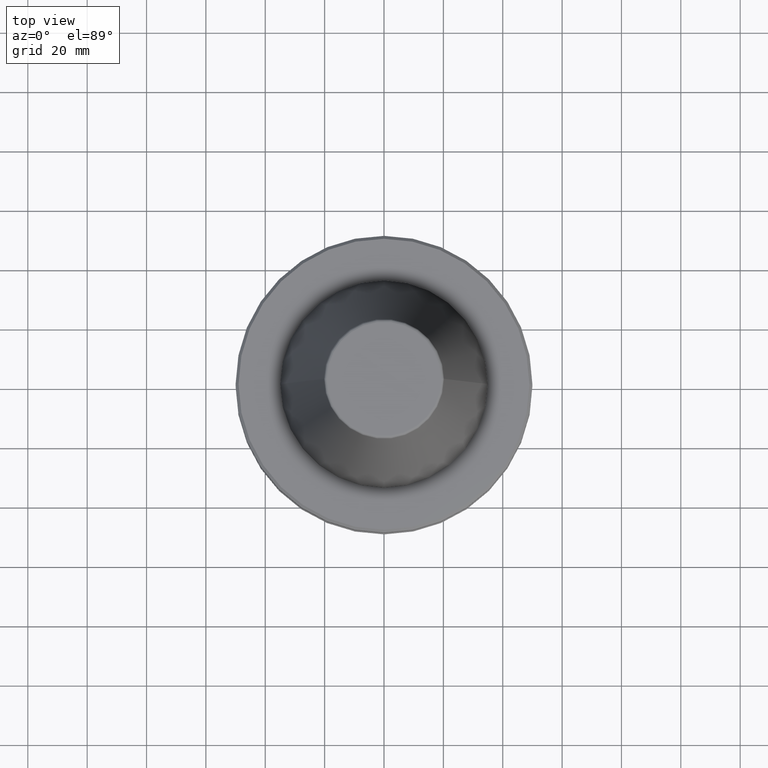
[diagram: clean part render]
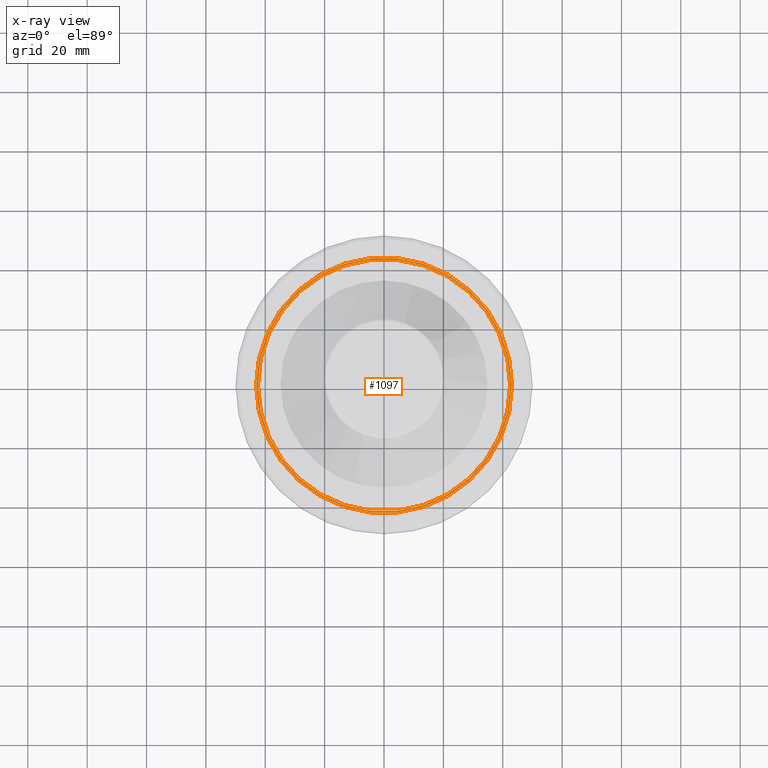
[diagram: x-ray — body ghosted, one internal face saturated and labeled with its STEP entity id]
A machine part, top view, then the same camera in x-ray: the body is ghosted and one INTERNAL B-rep face — a face not visible from any outside direction — is saturated and labeled: STEP entity #1097.
In plain terms, the highlighted planar face has unit normal (0, 0, -1).
Its self-contained STEP definition (entity closure, byte-faithful):
#4 = CARTESIAN_POINT ( 'NONE',  ( 0.0000000000000000000, 43.07217782648942300, -26.70000000000072400 ) ) ;
#8 = ORIENTED_EDGE ( 'NONE', *, *, #1195, .F. ) ;
#55 = DIRECTION ( 'NONE',  ( -1.000000000000000000, 0.0000000000000000000, -0.0000000000000000000 ) ) ;
#175 = EDGE_CURVE ( 'NONE', #621, #790, #761, .T. ) ;
#194 = CIRCLE ( 'NONE', #519, 43.07217782648942300 ) ;
#253 = DIRECTION ( 'NONE',  ( 1.000000000000000000, 0.0000000000000000000, 0.0000000000000000000 ) ) ;
#304 = FACE_BOUND ( 'NONE', #929, .T. ) ;
#324 = AXIS2_PLACEMENT_3D ( 'NONE', #1218, #1305, #1293 ) ;
#334 = CARTESIAN_POINT ( 'NONE',  ( 0.0000000000000000000, 0.0000000000000000000, -26.70000000000073800 ) ) ;
#343 = VERTEX_POINT ( 'NONE', #1046 ) ;
#344 = DIRECTION ( 'NONE',  ( -0.0000000000000000000, -0.0000000000000000000, 1.000000000000000000 ) ) ;
#411 = AXIS2_PLACEMENT_3D ( 'NONE', #1278, #344, #777 ) ;
#519 = AXIS2_PLACEMENT_3D ( 'NONE', #833, #788, #253 ) ;
#537 = EDGE_CURVE ( 'NONE', #343, #992, #932, .T. ) ;
#546 = CIRCLE ( 'NONE', #1112, 42.49999999999953800 ) ;
#555 = CARTESIAN_POINT ( 'NONE',  ( -43.07217782648942300, 0.0000000000000000000, -26.70000000000073800 ) ) ;
#576 = CARTESIAN_POINT ( 'NONE',  ( -42.49999999999953800, 5.204748896376194900E-015, -26.70000000000073800 ) ) ;
#621 = VERTEX_POINT ( 'NONE', #576 ) ;
#710 = PLANE ( 'NONE',  #1321 ) ;
#742 = DIRECTION ( 'NONE',  ( -0.0000000000000000000, -0.0000000000000000000, 1.000000000000000000 ) ) ;
#761 = CIRCLE ( 'NONE', #324, 42.49999999999953800 ) ;
#777 = DIRECTION ( 'NONE',  ( 1.000000000000000000, 0.0000000000000000000, 0.0000000000000000000 ) ) ;
#788 = DIRECTION ( 'NONE',  ( -0.0000000000000000000, -0.0000000000000000000, 1.000000000000000000 ) ) ;
#790 = VERTEX_POINT ( 'NONE', #1135 ) ;
#796 = FACE_OUTER_BOUND ( 'NONE', #1292, .T. ) ;
#819 = DIRECTION ( 'NONE',  ( 0.0000000000000000000, 0.0000000000000000000, -1.000000000000000000 ) ) ;
#833 = CARTESIAN_POINT ( 'NONE',  ( 0.0000000000000000000, 0.0000000000000000000, -26.70000000000073800 ) ) ;
#883 = EDGE_CURVE ( 'NONE', #992, #343, #194, .T. ) ;
#929 = EDGE_LOOP ( 'NONE', ( #8, #1287 ) ) ;
#932 = CIRCLE ( 'NONE', #411, 43.07217782648942300 ) ;
#950 = ORIENTED_EDGE ( 'NONE', *, *, #883, .T. ) ;
#992 = VERTEX_POINT ( 'NONE', #555 ) ;
#1046 = CARTESIAN_POINT ( 'NONE',  ( 43.07217782648942300, 5.699027233244172700E-015, -26.70000000000073800 ) ) ;
#1097 = ADVANCED_FACE ( 'NONE', ( #304, #796 ), #710, .F. ) ;
#1105 = ORIENTED_EDGE ( 'NONE', *, *, #537, .T. ) ;
#1112 = AXIS2_PLACEMENT_3D ( 'NONE', #334, #742, #1139 ) ;
#1135 = CARTESIAN_POINT ( 'NONE',  ( 42.49999999999953800, 0.0000000000000000000, -26.70000000000073800 ) ) ;
#1139 = DIRECTION ( 'NONE',  ( 1.000000000000000000, 0.0000000000000000000, 0.0000000000000000000 ) ) ;
#1195 = EDGE_CURVE ( 'NONE', #790, #621, #546, .T. ) ;
#1218 = CARTESIAN_POINT ( 'NONE',  ( 0.0000000000000000000, 0.0000000000000000000, -26.70000000000073800 ) ) ;
#1278 = CARTESIAN_POINT ( 'NONE',  ( 0.0000000000000000000, 0.0000000000000000000, -26.70000000000073800 ) ) ;
#1287 = ORIENTED_EDGE ( 'NONE', *, *, #175, .F. ) ;
#1292 = EDGE_LOOP ( 'NONE', ( #950, #1105 ) ) ;
#1293 = DIRECTION ( 'NONE',  ( 1.000000000000000000, 0.0000000000000000000, 0.0000000000000000000 ) ) ;
#1305 = DIRECTION ( 'NONE',  ( -0.0000000000000000000, -0.0000000000000000000, 1.000000000000000000 ) ) ;
#1321 = AXIS2_PLACEMENT_3D ( 'NONE', #4, #819, #55 ) ;